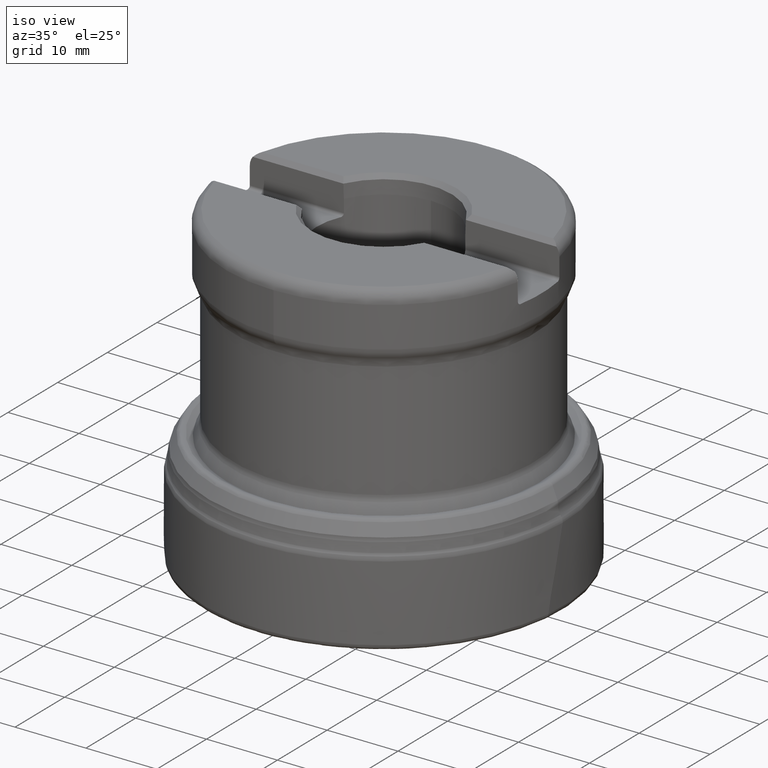
[diagram: clean part render]
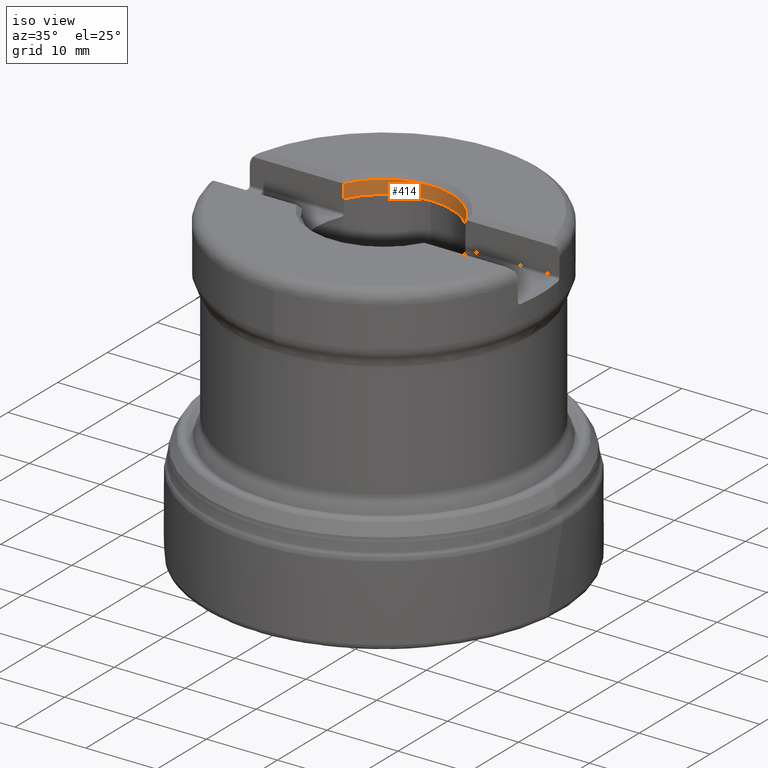
[diagram: same view with one face highlighted and labeled with its STEP entity id]
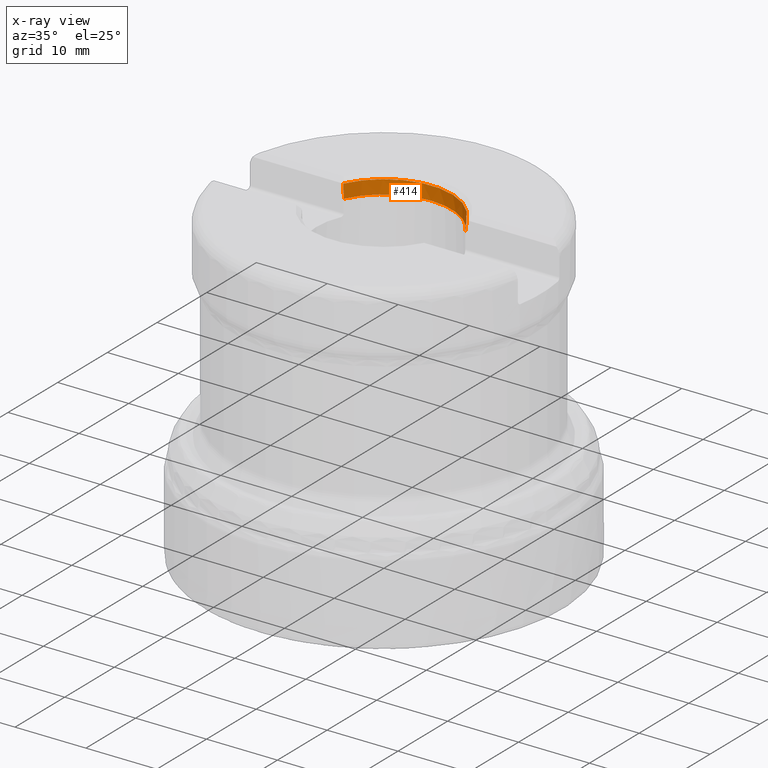
[diagram: x-ray of the same camera — body ghosted, the highlighted face saturated]
A machine part, iso view. The second image highlights one B-rep face of the part: STEP entity #414.
The next image is the same camera in x-ray: the body ghosted, the highlighted face saturated — about 0% of this face is hidden behind the body in this view.
In plain terms, the highlighted conical surface has half-angle 2 deg.
Its self-contained STEP definition (entity closure, byte-faithful):
#157=ELLIPSE('',#1501,13.3743418146218,9.45131976120902);
#158=ELLIPSE('',#1503,13.3743418146218,9.45131976120902);
#168=CONICAL_SURFACE('',#1505,9.525,2.);
#414=ADVANCED_FACE('',(#519),#168,.F.);
#519=FACE_OUTER_BOUND('',#567,.T.);
#567=EDGE_LOOP('',(#778,#779,#780,#781,#782,#783));
#778=ORIENTED_EDGE('',*,*,#1201,.F.);
#779=ORIENTED_EDGE('',*,*,#1207,.T.);
#780=ORIENTED_EDGE('',*,*,#1208,.T.);
#781=ORIENTED_EDGE('',*,*,#1209,.T.);
#782=ORIENTED_EDGE('',*,*,#1210,.F.);
#783=ORIENTED_EDGE('',*,*,#1211,.F.);
#1070=VERTEX_POINT('',#2952);
#1071=VERTEX_POINT('',#2960);
#1075=VERTEX_POINT('',#2978);
#1076=VERTEX_POINT('',#2980);
#1077=VERTEX_POINT('',#2982);
#1078=VERTEX_POINT('',#2990);
#1201=EDGE_CURVE('',#1070,#1071,#1412,.T.);
#1207=EDGE_CURVE('',#1070,#1075,#157,.T.);
#1208=EDGE_CURVE('',#1075,#1076,#1321,.T.);
#1209=EDGE_CURVE('',#1076,#1077,#158,.T.);
#1210=EDGE_CURVE('',#1078,#1077,#1414,.T.);
#1211=EDGE_CURVE('',#1071,#1078,#1322,.T.);
#1321=CIRCLE('',#1502,9.59136222570787);
#1322=CIRCLE('',#1504,9.525);
#1412=B_SPLINE_CURVE_WITH_KNOTS('',3,(#2953,#2954,#2955,#2956,#2957,#2958,
#2959),.UNSPECIFIED.,.F.,.F.,(4,3,4),(0.,0.319105956427458,1.),
 .UNSPECIFIED.);
#1414=B_SPLINE_CURVE_WITH_KNOTS('',3,(#2983,#2984,#2985,#2986,#2987,#2988,
#2989),.UNSPECIFIED.,.F.,.F.,(4,3,4),(0.,0.680894043572552,1.),
 .UNSPECIFIED.);
#1501=AXIS2_PLACEMENT_3D('',#2977,#1719,#1720);
#1502=AXIS2_PLACEMENT_3D('',#2979,#1721,#1722);
#1503=AXIS2_PLACEMENT_3D('',#2981,#1723,#1724);
#1504=AXIS2_PLACEMENT_3D('',#2991,#1725,#1726);
#1505=AXIS2_PLACEMENT_3D('',#2992,#1727,#1728);
#1719=DIRECTION('',(0.,-0.707106781186549,0.707106781186546));
#1720=DIRECTION('',(0.,0.707106781186546,0.707106781186549));
#1721=DIRECTION('',(0.,1.17145536458252E-15,1.));
#1722=DIRECTION('',(0.,1.,-1.44690477548826E-15));
#1723=DIRECTION('',(0.,-0.707106781186549,0.707106781186546));
#1724=DIRECTION('',(0.,0.707106781186546,0.707106781186549));
#1725=DIRECTION('',(0.,1.17145536458252E-15,1.));
#1726=DIRECTION('',(0.,1.,-1.45698559662094E-15));
#1727=DIRECTION('',(0.,1.17145536458252E-15,1.));
#1728=DIRECTION('',(0.,-1.,-1.40508412497527E-15));
#2952=CARTESIAN_POINT('',(8.63500778823424,4.17500000000005,43.85));
#2953=CARTESIAN_POINT('',(8.63500778823424,4.17500000000005,43.85));
#2954=CARTESIAN_POINT('',(8.62716864541453,4.17500000000005,43.647899312624));
#2955=CARTESIAN_POINT('',(8.61932748300588,4.17500000000005,43.4457987035741));
#2956=CARTESIAN_POINT('',(8.6114842844197,4.17500000000005,43.2436981735551));
#2957=CARTESIAN_POINT('',(8.5947488175009,4.17500000000005,42.8124650870485));
#2958=CARTESIAN_POINT('',(8.57800408030153,4.17500000000005,42.3812323602033));
#2959=CARTESIAN_POINT('',(8.5612499087458,4.17500000000005,41.95));
#2960=CARTESIAN_POINT('',(8.5612499087458,4.17500000000005,41.95));
#2977=CARTESIAN_POINT('',(0.,0.330248782813684,40.0052487828136));
#2978=CARTESIAN_POINT('',(8.63484523628006,4.1753655037886,43.8503655037886));
#2979=CARTESIAN_POINT('',(0.,5.13687459083176E-14,43.8503655037886));
#2980=CARTESIAN_POINT('',(-8.63484523628006,4.1753655037886,43.8503655037886));
#2981=CARTESIAN_POINT('',(0.,0.330248782813684,40.0052487828136));
#2982=CARTESIAN_POINT('',(-8.63500778823424,4.17500000000005,43.85));
#2983=CARTESIAN_POINT('',(-8.5612499087458,4.17500000000005,41.95));
#2984=CARTESIAN_POINT('',(-8.57800408030153,4.17500000000005,42.3812323602033));
#2985=CARTESIAN_POINT('',(-8.59474881750089,4.17500000000005,42.8124650870485));
#2986=CARTESIAN_POINT('',(-8.61148428441969,4.17500000000005,43.2436981735551));
#2987=CARTESIAN_POINT('',(-8.61932748300588,4.17500000000005,43.4457987035741));
#2988=CARTESIAN_POINT('',(-8.62716864541453,4.17500000000005,43.647899312624));
#2989=CARTESIAN_POINT('',(-8.63500778823424,4.17500000000005,43.85));
#2990=CARTESIAN_POINT('',(-8.5612499087458,4.17500000000005,41.95));
#2991=CARTESIAN_POINT('',(0.,4.91425525442369E-14,41.95));
#2992=CARTESIAN_POINT('',(0.,4.91425525442369E-14,41.95));